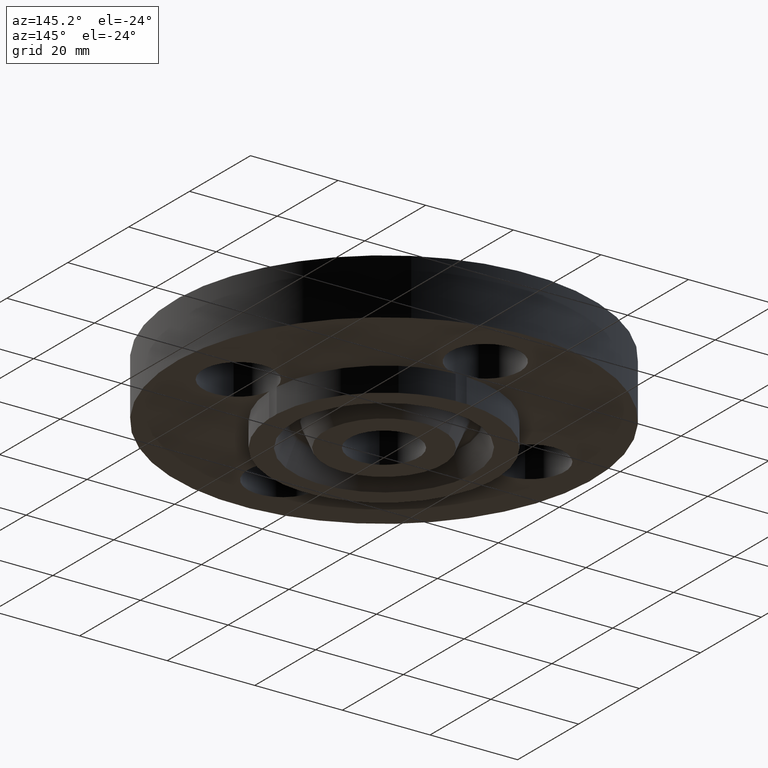
[diagram: clean part render]
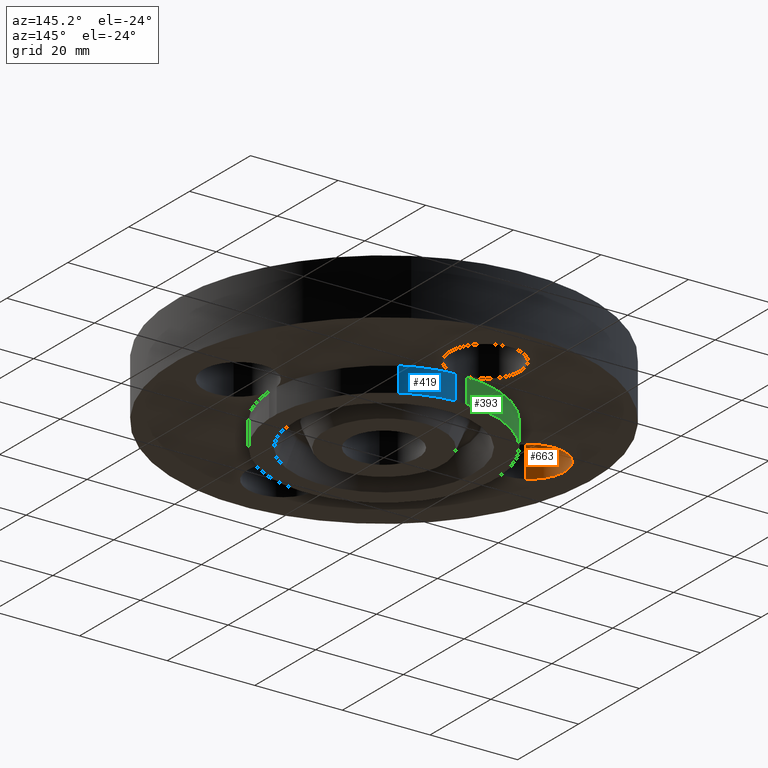
[diagram: same view with three faces highlighted in distinct colors, each labeled with its STEP entity id]
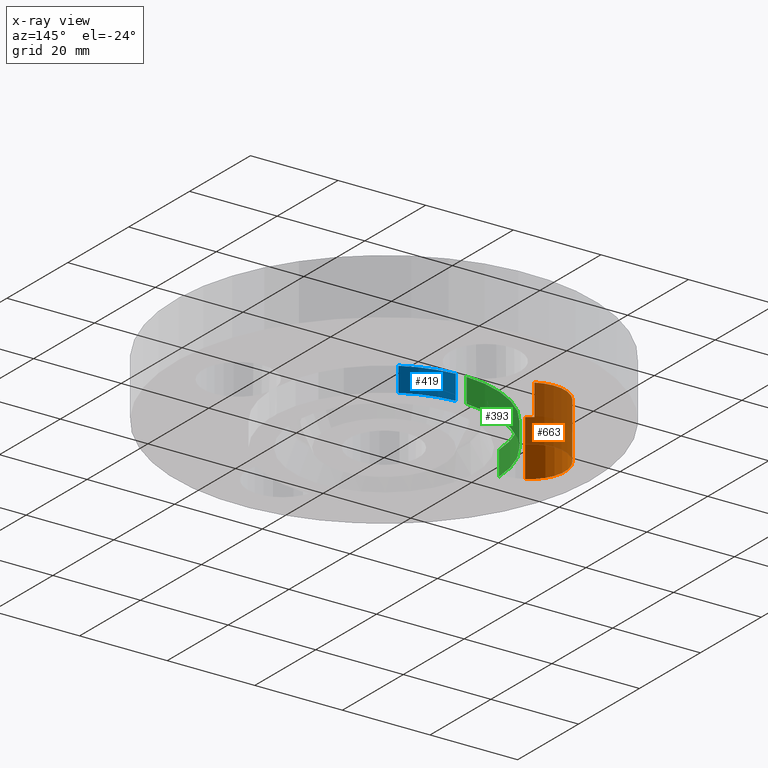
[diagram: x-ray of the same camera — body ghosted, the three highlighted faces saturated]
A machine part, auxiliary view with three faces highlighted in distinct colors.
The next image is the same camera in x-ray (body ghosted, the three faces saturated) — at least one of them is partly hidden behind the body in this view.
Their STEP definitions:

[orange] entity #663 — the highlighted cylindrical surface (partial cylindrical patch) has radius 8.001 mm, axis along (0, 0, -1).
#509=AXIS2_PLACEMENT_3D('Circle Axis2P3D',#507,#508,$) ;
#636=AXIS2_PLACEMENT_3D('Cylinder Axis2P3D',#633,#634,#635) ;
#654=AXIS2_PLACEMENT_3D('Circle Axis2P3D',#652,#653,$) ;
#504=CARTESIAN_POINT('Vertex',(-1.15898095534,0.276438506997,0.)) ;
#507=CARTESIAN_POINT('Axis2P3D Location',(-1.31000000001,-2.79741234551E-016,0.)) ;
#511=CARTESIAN_POINT('Vertex',(-1.46101904467,-0.276438506997,0.)) ;
#633=CARTESIAN_POINT('Axis2P3D Location',(-1.31000000001,-2.40643096033E-016,0.496062992128)) ;
#638=CARTESIAN_POINT('Line Origine',(-1.46101904467,-0.276438506997,0.140500000001)) ;
#642=CARTESIAN_POINT('Vertex',(-1.46101904467,-0.276438506997,0.500000000002)) ;
#645=CARTESIAN_POINT('Line Origine',(-1.15898095534,0.276438506997,0.140500000001)) ;
#649=CARTESIAN_POINT('Vertex',(-1.15898095534,0.276438506997,0.500000000002)) ;
#652=CARTESIAN_POINT('Axis2P3D Location',(-1.31000000001,-2.40643096033E-016,0.500000000002)) ;
#508=DIRECTION('Axis2P3D Direction',(0.,0.,-0.0393700787402)) ;
#634=DIRECTION('Axis2P3D Direction',(0.,0.,-0.0393700787402)) ;
#635=DIRECTION('Axis2P3D XDirection',(0.0188750212049,0.0345504945626,0.)) ;
#639=DIRECTION('Vector Direction',(0.,0.,-0.0393700787402)) ;
#646=DIRECTION('Vector Direction',(0.,0.,-0.0393700787402)) ;
#653=DIRECTION('Axis2P3D Direction',(0.,0.,-0.0393700787402)) ;
#640=VECTOR('Line Direction',#639,0.0393700787402) ;
#647=VECTOR('Line Direction',#646,0.0393700787402) ;
#658=ORIENTED_EDGE('',*,*,#644,.F.) ;
#659=ORIENTED_EDGE('',*,*,#513,.T.) ;
#660=ORIENTED_EDGE('',*,*,#651,.T.) ;
#661=ORIENTED_EDGE('',*,*,#656,.F.) ;
#663=ADVANCED_FACE('PartBody',(#662),#637,.F.) ;
#510=CIRCLE('generated circle',#509,0.315000000001) ;
#655=CIRCLE('generated circle',#654,0.315000000001) ;
#637=CYLINDRICAL_SURFACE('generated cylinder',#636,0.315000000001) ;
#513=EDGE_CURVE('',#512,#505,#510,.T.) ;
#644=EDGE_CURVE('',#512,#643,#641,.F.) ;
#651=EDGE_CURVE('',#505,#650,#648,.F.) ;
#656=EDGE_CURVE('',#643,#650,#655,.T.) ;
#657=EDGE_LOOP('',(#658,#659,#660,#661)) ;
#662=FACE_OUTER_BOUND('',#657,.T.) ;
#641=LINE('Line',#638,#640) ;
#648=LINE('Line',#645,#647) ;
#505=VERTEX_POINT('',#504) ;
#512=VERTEX_POINT('',#511) ;
#643=VERTEX_POINT('',#642) ;
#650=VERTEX_POINT('',#649) ;

[blue] entity #419 — the highlighted cylindrical surface (partial cylindrical patch) has radius 25.4 mm, axis along (0, 0, -1).
#244=AXIS2_PLACEMENT_3D('Circle Axis2P3D',#242,#243,$) ;
#295=AXIS2_PLACEMENT_3D('Cylinder Axis2P3D',#292,#293,#294) ;
#396=AXIS2_PLACEMENT_3D('Circle Axis2P3D',#394,#395,$) ;
#239=CARTESIAN_POINT('Vertex',(0.0488269754871,0.998807251912,-0.219000000001)) ;
#242=CARTESIAN_POINT('Axis2P3D Location',(0.,0.,-0.219000000001)) ;
#246=CARTESIAN_POINT('Vertex',(0.479425538606,0.877582561894,-0.219000000001)) ;
#292=CARTESIAN_POINT('Axis2P3D Location',(0.,0.,0.295500000001)) ;
#394=CARTESIAN_POINT('Axis2P3D Location',(0.,0.,6.99353086378E-017)) ;
#398=CARTESIAN_POINT('Vertex',(0.0488269754871,0.998807251912,6.99353086378E-017)) ;
#400=CARTESIAN_POINT('Vertex',(0.479425538606,0.877582561894,3.49676543189E-017)) ;
#403=CARTESIAN_POINT('Line Origine',(0.479425538606,0.877582561894,-0.1095)) ;
#408=CARTESIAN_POINT('Line Origine',(0.0488269754871,0.998807251912,-0.1095)) ;
#243=DIRECTION('Axis2P3D Direction',(0.,0.,-0.0393700787402)) ;
#293=DIRECTION('Axis2P3D Direction',(0.,0.,-0.0393700787402)) ;
#294=DIRECTION('Axis2P3D XDirection',(0.0188750212049,0.0345504945626,0.)) ;
#395=DIRECTION('Axis2P3D Direction',(0.,0.,-0.0393700787402)) ;
#404=DIRECTION('Vector Direction',(0.,0.,-0.0393700787402)) ;
#409=DIRECTION('Vector Direction',(0.,0.,-0.0393700787402)) ;
#405=VECTOR('Line Direction',#404,0.0393700787402) ;
#410=VECTOR('Line Direction',#409,0.0393700787402) ;
#414=ORIENTED_EDGE('',*,*,#402,.T.) ;
#415=ORIENTED_EDGE('',*,*,#407,.F.) ;
#416=ORIENTED_EDGE('',*,*,#248,.F.) ;
#417=ORIENTED_EDGE('',*,*,#412,.F.) ;
#419=ADVANCED_FACE('PartBody',(#418),#296,.T.) ;
#245=CIRCLE('generated circle',#244,1.) ;
#397=CIRCLE('generated circle',#396,1.) ;
#296=CYLINDRICAL_SURFACE('generated cylinder',#295,1.) ;
#248=EDGE_CURVE('',#240,#247,#245,.T.) ;
#402=EDGE_CURVE('',#399,#401,#397,.T.) ;
#407=EDGE_CURVE('',#247,#401,#406,.F.) ;
#412=EDGE_CURVE('',#399,#240,#411,.T.) ;
#413=EDGE_LOOP('',(#414,#415,#416,#417)) ;
#418=FACE_OUTER_BOUND('',#413,.T.) ;
#406=LINE('Line',#403,#405) ;
#411=LINE('Line',#408,#410) ;
#240=VERTEX_POINT('',#239) ;
#247=VERTEX_POINT('',#246) ;
#399=VERTEX_POINT('',#398) ;
#401=VERTEX_POINT('',#400) ;

[green] entity #393 — the highlighted cylindrical surface (partial cylindrical patch) has radius 25.4 mm, axis along (0, 0, -1).
#230=AXIS2_PLACEMENT_3D('Circle Axis2P3D',#228,#229,$) ;
#295=AXIS2_PLACEMENT_3D('Cylinder Axis2P3D',#292,#293,#294) ;
#370=AXIS2_PLACEMENT_3D('Circle Axis2P3D',#368,#369,$) ;
#225=CARTESIAN_POINT('Vertex',(-0.998807251912,0.0488269754871,-0.219000000001)) ;
#228=CARTESIAN_POINT('Axis2P3D Location',(0.,0.,-0.219000000001)) ;
#232=CARTESIAN_POINT('Vertex',(-0.0488269754871,0.998807251912,-0.219000000001)) ;
#292=CARTESIAN_POINT('Axis2P3D Location',(0.,0.,0.295500000001)) ;
#368=CARTESIAN_POINT('Axis2P3D Location',(0.,0.,6.99353086378E-017)) ;
#372=CARTESIAN_POINT('Vertex',(-0.998807251912,0.0488269754871,6.99353086378E-017)) ;
#374=CARTESIAN_POINT('Vertex',(-0.0488269754871,0.998807251912,6.99353086378E-017)) ;
#377=CARTESIAN_POINT('Line Origine',(-0.0488269754871,0.998807251912,-0.1095)) ;
#382=CARTESIAN_POINT('Line Origine',(-0.998807251912,0.0488269754871,-0.1095)) ;
#229=DIRECTION('Axis2P3D Direction',(0.,0.,-0.0393700787402)) ;
#293=DIRECTION('Axis2P3D Direction',(0.,0.,-0.0393700787402)) ;
#294=DIRECTION('Axis2P3D XDirection',(0.0188750212049,0.0345504945626,0.)) ;
#369=DIRECTION('Axis2P3D Direction',(0.,0.,-0.0393700787402)) ;
#378=DIRECTION('Vector Direction',(0.,0.,-0.0393700787402)) ;
#383=DIRECTION('Vector Direction',(0.,0.,-0.0393700787402)) ;
#379=VECTOR('Line Direction',#378,0.0393700787402) ;
#384=VECTOR('Line Direction',#383,0.0393700787402) ;
#388=ORIENTED_EDGE('',*,*,#376,.T.) ;
#389=ORIENTED_EDGE('',*,*,#381,.T.) ;
#390=ORIENTED_EDGE('',*,*,#234,.F.) ;
#391=ORIENTED_EDGE('',*,*,#386,.F.) ;
#393=ADVANCED_FACE('PartBody',(#392),#296,.T.) ;
#231=CIRCLE('generated circle',#230,1.) ;
#371=CIRCLE('generated circle',#370,1.) ;
#296=CYLINDRICAL_SURFACE('generated cylinder',#295,1.) ;
#234=EDGE_CURVE('',#226,#233,#231,.T.) ;
#376=EDGE_CURVE('',#373,#375,#371,.T.) ;
#381=EDGE_CURVE('',#375,#233,#380,.T.) ;
#386=EDGE_CURVE('',#373,#226,#385,.T.) ;
#387=EDGE_LOOP('',(#388,#389,#390,#391)) ;
#392=FACE_OUTER_BOUND('',#387,.T.) ;
#380=LINE('Line',#377,#379) ;
#385=LINE('Line',#382,#384) ;
#226=VERTEX_POINT('',#225) ;
#233=VERTEX_POINT('',#232) ;
#373=VERTEX_POINT('',#372) ;
#375=VERTEX_POINT('',#374) ;